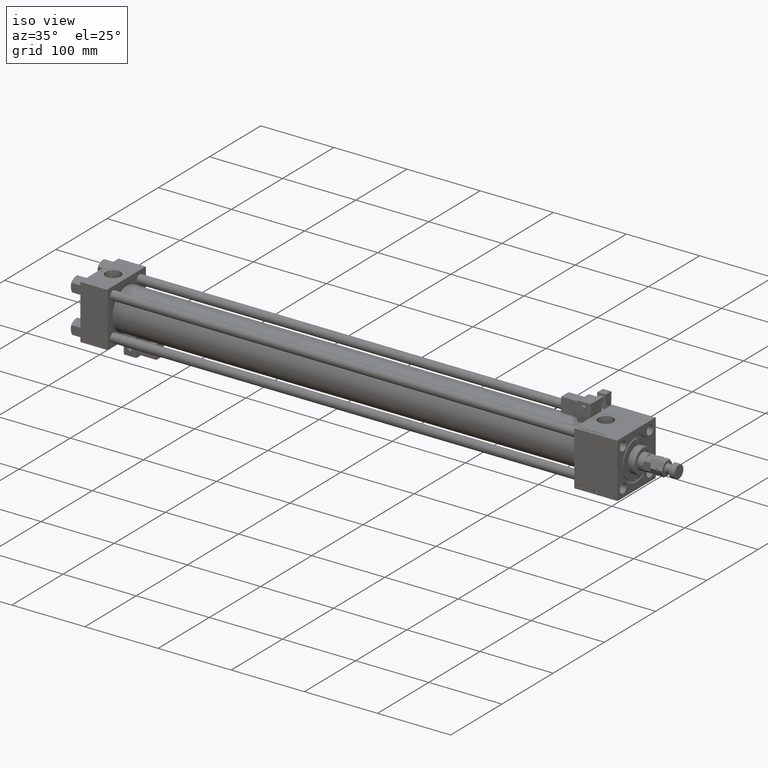
[diagram: clean part render]
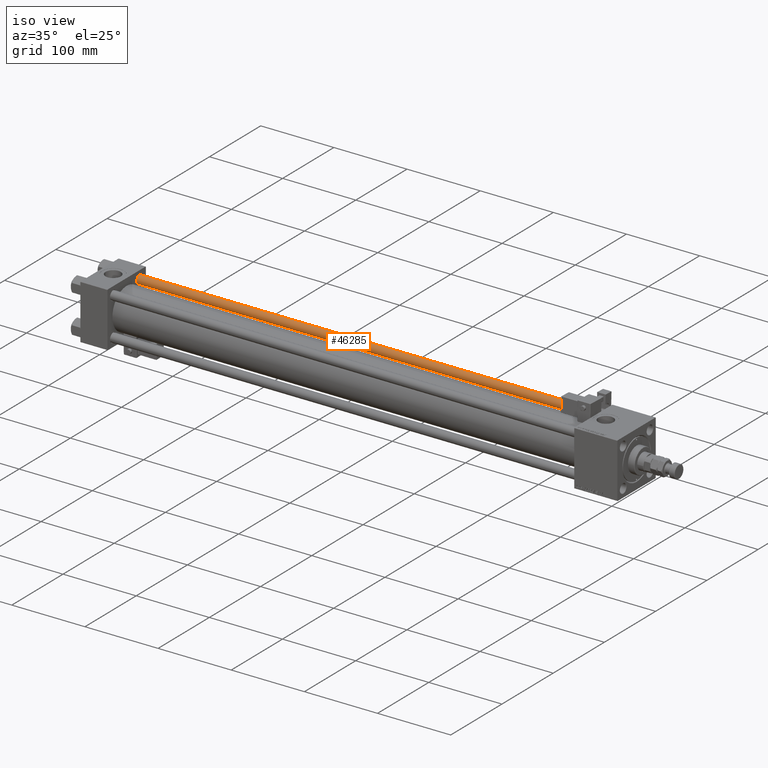
[diagram: same view with one face highlighted and labeled with its STEP entity id]
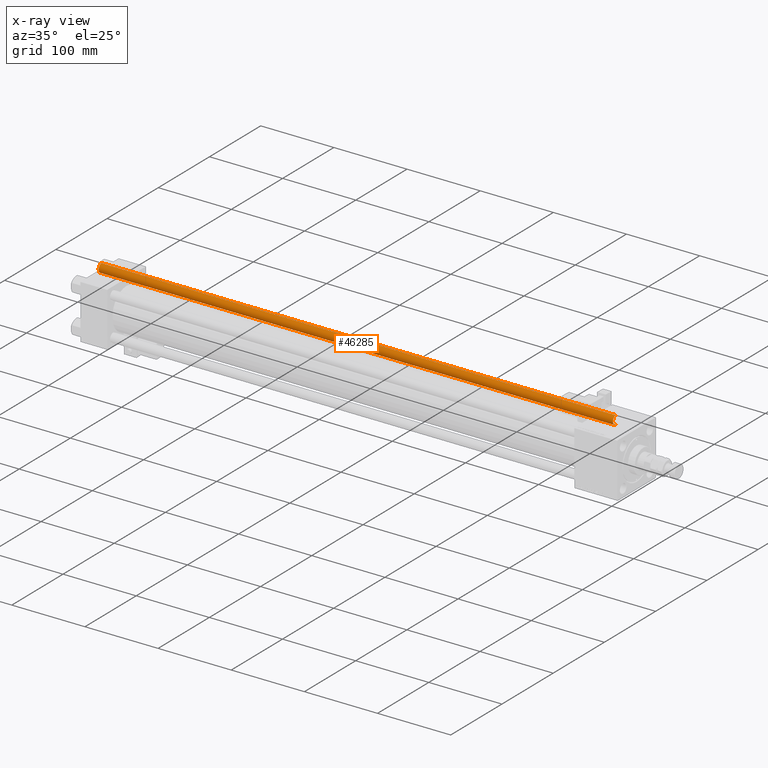
[diagram: x-ray of the same camera — body ghosted, the highlighted face saturated]
A machine part, iso view. The second image highlights one B-rep face of the part: STEP entity #46285.
The next image is the same camera in x-ray: the body ghosted, the highlighted face saturated — about 0% of this face is hidden behind the body in this view.
In plain terms, the highlighted cylindrical surface (edge-blend (fillet) strip) has radius 6 mm, axis along (-1, 0, 0).
Its self-contained STEP definition (entity closure, byte-faithful):
#945 = ORIENTED_EDGE ( 'NONE', *, *, #2735, .F. ) ;
#2735 = EDGE_CURVE ( 'NONE', #6185, #37512, #21170, .T. ) ;
#5239 = VECTOR ( 'NONE', #47706, 1000.000000000000000 ) ;
#6185 = VERTEX_POINT ( 'NONE', #50404 ) ;
#7380 = AXIS2_PLACEMENT_3D ( 'NONE', #17259, #17536, #39180 ) ;
#7892 = LINE ( 'NONE', #47150, #5239 ) ;
#8066 = CIRCLE ( 'NONE', #14385, 6.000000000000000888 ) ;
#8442 = FACE_OUTER_BOUND ( 'NONE', #10282, .T. ) ;
#10282 = EDGE_LOOP ( 'NONE', ( #945, #25188, #56142, #36290 ) ) ;
#14385 = AXIS2_PLACEMENT_3D ( 'NONE', #30746, #21362, #42970 ) ;
#14798 = DIRECTION ( 'NONE',  ( 0.000000000000000000, 0.000000000000000000, -1.000000000000000000 ) ) ;
#17259 = CARTESIAN_POINT ( 'NONE',  ( 0.000000000000000000, 0.000000000000000000, 704.0000000000000000 ) ) ;
#17536 = DIRECTION ( 'NONE',  ( -0.000000000000000000, -0.000000000000000000, -1.000000000000000000 ) ) ;
#18108 = CYLINDRICAL_SURFACE ( 'NONE', #7380, 6.000000000000000888 ) ;
#21170 = LINE ( 'NONE', #34553, #29497 ) ;
#21362 = DIRECTION ( 'NONE',  ( -0.000000000000000000, -0.000000000000000000, 1.000000000000000000 ) ) ;
#24138 = EDGE_CURVE ( 'NONE', #29870, #49722, #7892, .T. ) ;
#24448 = EDGE_CURVE ( 'NONE', #6185, #29870, #34377, .T. ) ;
#25188 = ORIENTED_EDGE ( 'NONE', *, *, #24448, .T. ) ;
#29497 = VECTOR ( 'NONE', #46510, 1000.000000000000000 ) ;
#29870 = VERTEX_POINT ( 'NONE', #46878 ) ;
#30746 = CARTESIAN_POINT ( 'NONE',  ( 0.000000000000000000, 0.000000000000000000, 0.4999999999998339106 ) ) ;
#32771 = DIRECTION ( 'NONE',  ( 1.000000000000000000, 0.000000000000000000, 0.000000000000000000 ) ) ;
#34377 = CIRCLE ( 'NONE', #51624, 6.000000000000000888 ) ;
#34553 = CARTESIAN_POINT ( 'NONE',  ( 6.000000000000000888, 7.347880794884120722E-16, 704.0000000000000000 ) ) ;
#36290 = ORIENTED_EDGE ( 'NONE', *, *, #37239, .T. ) ;
#36421 = CARTESIAN_POINT ( 'NONE',  ( -6.000000000000000888, 0.000000000000000000, 0.4999999999998339106 ) ) ;
#37239 = EDGE_CURVE ( 'NONE', #49722, #37512, #8066, .T. ) ;
#37512 = VERTEX_POINT ( 'NONE', #43467 ) ;
#39180 = DIRECTION ( 'NONE',  ( -1.000000000000000000, 0.000000000000000000, 0.000000000000000000 ) ) ;
#42970 = DIRECTION ( 'NONE',  ( 1.000000000000000000, 0.000000000000000000, 0.000000000000000000 ) ) ;
#43467 = CARTESIAN_POINT ( 'NONE',  ( 6.000000000000000888, 7.347880794884120722E-16, 0.4999999999998339106 ) ) ;
#46285 = ADVANCED_FACE ( 'NONE', ( #8442 ), #18108, .T. ) ;
#46510 = DIRECTION ( 'NONE',  ( -0.000000000000000000, -0.000000000000000000, -1.000000000000000000 ) ) ;
#46878 = CARTESIAN_POINT ( 'NONE',  ( -6.000000000000000888, 0.000000000000000000, 703.5000000000000000 ) ) ;
#47150 = CARTESIAN_POINT ( 'NONE',  ( -6.000000000000000888, 0.000000000000000000, 704.0000000000000000 ) ) ;
#47706 = DIRECTION ( 'NONE',  ( -0.000000000000000000, -0.000000000000000000, -1.000000000000000000 ) ) ;
#49722 = VERTEX_POINT ( 'NONE', #36421 ) ;
#50404 = CARTESIAN_POINT ( 'NONE',  ( 6.000000000000000888, 7.347880794884120722E-16, 703.5000000000000000 ) ) ;
#51624 = AXIS2_PLACEMENT_3D ( 'NONE', #53245, #14798, #32771 ) ;
#53245 = CARTESIAN_POINT ( 'NONE',  ( 0.000000000000000000, 0.000000000000000000, 703.5000000000000000 ) ) ;
#56142 = ORIENTED_EDGE ( 'NONE', *, *, #24138, .T. ) ;